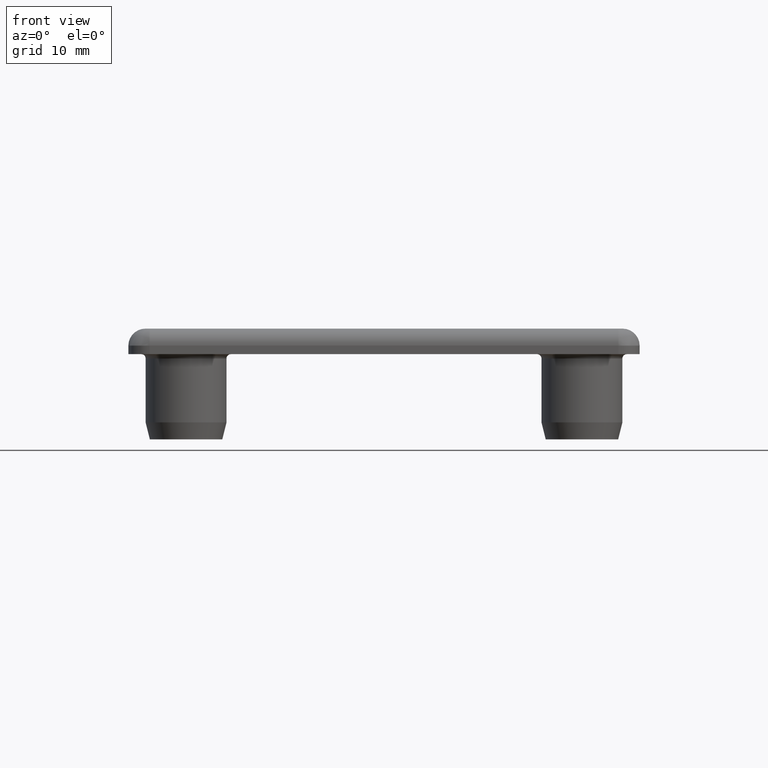
[diagram: clean part render]
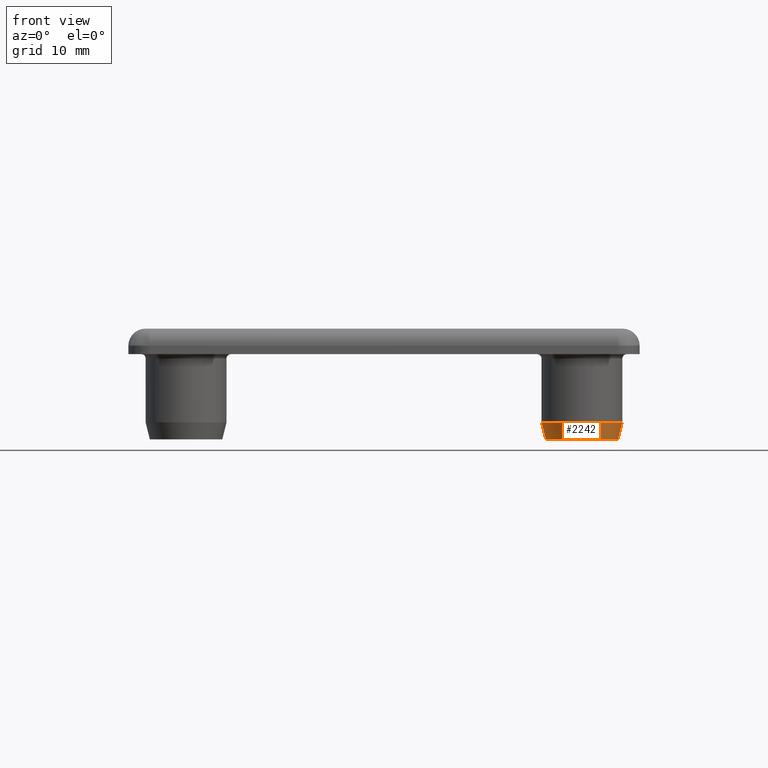
[diagram: same view with one face highlighted and labeled with its STEP entity id]
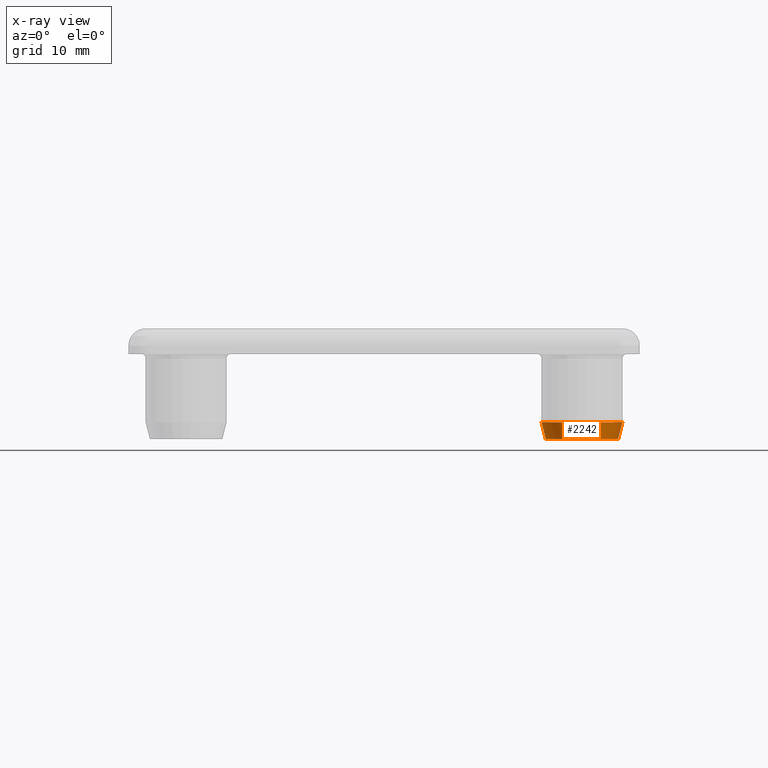
[diagram: x-ray of the same camera — body ghosted, the highlighted face saturated]
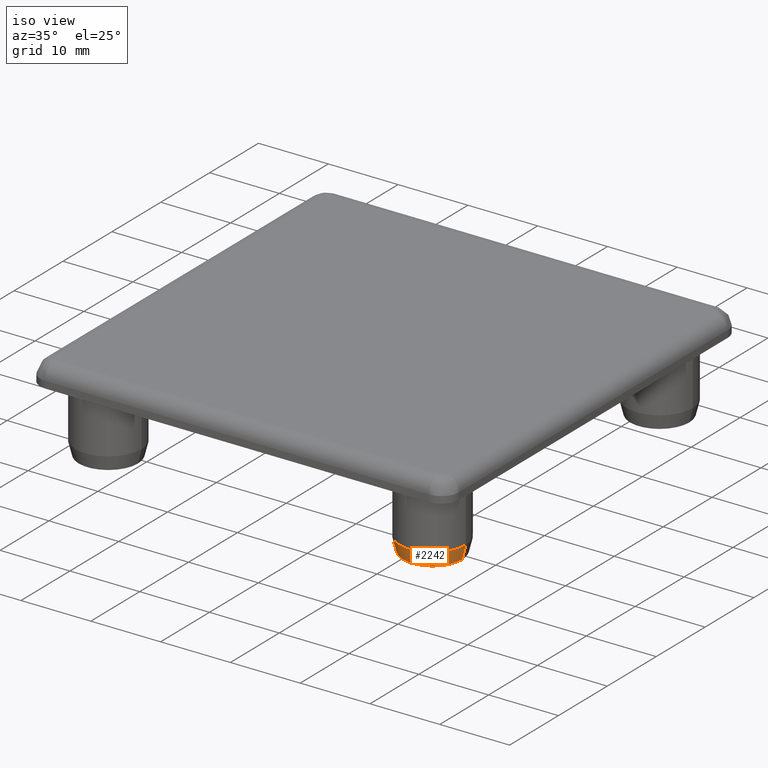
[diagram: same view with one face highlighted and labeled with its STEP entity id]
A machine part, front view. The second image highlights one B-rep face of the part: STEP entity #2242.
The next image is the same camera in x-ray: the body ghosted, the highlighted face saturated — about 0% of this face is hidden behind the body in this view.
A second angle (iso view) of the same face is appended — the face is thin or edge-on in the first view.
In plain terms, the highlighted face is a freeform B-spline surface patch.
Its self-contained STEP definition (entity closure, byte-faithful):
#1233=CARTESIAN_POINT('',(18.980000000000000,6.769999999999996,-9.999999999999996));
#1234=VERTEX_POINT('',#1233);
#1235=CARTESIAN_POINT('',(27.480000000000000,6.769999999999996,-9.999999999999996));
#1236=VERTEX_POINT('',#1235);
#1244=CARTESIAN_POINT('',(18.480000000000000,6.769999999999996,-7.999999999999996));
#1245=VERTEX_POINT('',#1244);
#1246=CARTESIAN_POINT('',(18.980000000000000,6.769999999999996,-9.999999999999996));
#1247=DIRECTION('',(-0.242535625036333,0.0,0.970142500145332));
#1248=VECTOR('',#1247,2.061552812808830);
#1249=LINE('',#1246,#1248);
#1250=EDGE_CURVE('',#1234,#1245,#1249,.T.);
#1252=CARTESIAN_POINT('',(27.980000000000000,6.769999999999996,-7.999999999999996));
#1253=VERTEX_POINT('',#1252);
#1261=CARTESIAN_POINT('',(27.480000000000000,6.769999999999996,-9.999999999999996));
#1262=DIRECTION('',(0.242535625036333,0.0,0.970142500145332));
#1263=VECTOR('',#1262,2.061552812808830);
#1264=LINE('',#1261,#1263);
#1265=EDGE_CURVE('',#1236,#1253,#1264,.T.);
#2128=CARTESIAN_POINT('',(23.230000000000000,6.769999999999996,-7.999999999999996));
#2129=DIRECTION('',(-1.224647E-016,0.0,1.0));
#2130=DIRECTION('',(1.0,0.0,1.224647E-016));
#2131=AXIS2_PLACEMENT_3D('',#2128,#2129,#2130);
#2132=CIRCLE('',#2131,4.749999999999997);
#2133=EDGE_CURVE('',#1245,#1253,#2132,.T.);
#2145=CARTESIAN_POINT('',(23.230000000000000,6.769999999999996,-9.999999999999996));
#2146=DIRECTION('',(1.224647E-016,0.0,-1.0));
#2147=DIRECTION('',(1.0,0.0,1.224647E-016));
#2148=AXIS2_PLACEMENT_3D('',#2145,#2146,#2147);
#2149=CIRCLE('',#2148,4.249999999999997);
#2150=EDGE_CURVE('',#1236,#1234,#2149,.T.);
#2210=CARTESIAN_POINT('',(23.230000000000008,6.769999999999989,-26.999999999999972));
#2211=CARTESIAN_POINT('',(23.230000000000008,6.769999999999990,-26.999999999999972));
#2212=CARTESIAN_POINT('',(23.230000000000008,6.769999999999989,-26.999999999999972));
#2213=CARTESIAN_POINT('',(23.230000000000008,6.769999999999990,-26.999999999999972));
#2214=CARTESIAN_POINT('',(23.230000000000008,6.769999999999989,-26.999999999999972));
#2215=CARTESIAN_POINT('',(23.230000000000008,6.769999999999990,-26.999999999999972));
#2216=CARTESIAN_POINT('',(23.230000000000008,6.769999999999989,-26.999999999999972));
#2217=CARTESIAN_POINT('',(23.230000000000008,6.769999999999990,-26.999999999999972));
#2218=CARTESIAN_POINT('',(23.230000000000008,6.769999999999989,-26.999999999999972));
#2219=CARTESIAN_POINT('',(23.230000000000000,11.757499999999986,-7.049999999999996));
#2220=CARTESIAN_POINT('',(18.242500000000003,11.757499999999984,-7.049999999999995));
#2221=CARTESIAN_POINT('',(18.242500000000003,6.769999999999989,-7.049999999999996));
#2222=CARTESIAN_POINT('',(18.242500000000003,1.782499999999992,-7.049999999999995));
#2223=CARTESIAN_POINT('',(23.230000000000000,1.782499999999992,-7.049999999999996));
#2224=CARTESIAN_POINT('',(28.217500000000001,1.782499999999992,-7.049999999999995));
#2225=CARTESIAN_POINT('',(28.217499999999998,6.769999999999989,-7.049999999999996));
#2226=CARTESIAN_POINT('',(28.217500000000001,11.757499999999984,-7.049999999999995));
#2227=CARTESIAN_POINT('',(23.230000000000000,11.757499999999986,-7.049999999999996));
#2235=(BOUNDED_SURFACE()B_SPLINE_SURFACE(2,1,((#2210,#2219),(#2211,#2220),(#2212,#2221),(#2213,#2222),(#2214,#2223),(#2215,#2224),(#2216,#2225),(#2217,#2226),(#2218,#2227)),.UNSPECIFIED.,.T.,.F.,.U.)B_SPLINE_SURFACE_WITH_KNOTS((3,2,2,2,3),(2,2),(0.0,0.250000000000000,0.500000000000000,0.750000000000000,1.0),(0.0,1.0),.UNSPECIFIED.)GEOMETRIC_REPRESENTATION_ITEM()RATIONAL_B_SPLINE_SURFACE(((1.0,1.0),(0.707106781186548,0.707106781186548),(1.0,1.0),(0.707106781186548,0.707106781186548),(1.0,1.0),(0.707106781186548,0.707106781186548),(1.0,1.0),(0.707106781186548,0.707106781186548),(1.0,1.0)))REPRESENTATION_ITEM('')SURFACE());
#2236=ORIENTED_EDGE('',*,*,#1250,.F.);
#2237=ORIENTED_EDGE('',*,*,#2150,.F.);
#2238=ORIENTED_EDGE('',*,*,#1265,.T.);
#2239=ORIENTED_EDGE('',*,*,#2133,.F.);
#2240=EDGE_LOOP('',(#2236,#2237,#2238,#2239));
#2241=FACE_OUTER_BOUND('',#2240,.T.);
#2242=ADVANCED_FACE('',(#2241),#2235,.T.);